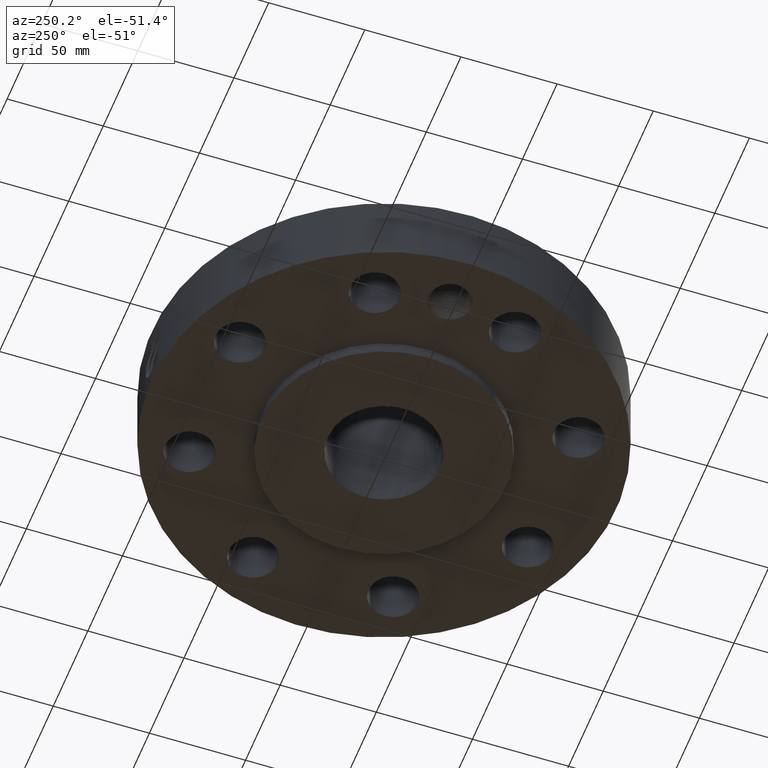
[diagram: clean part render]
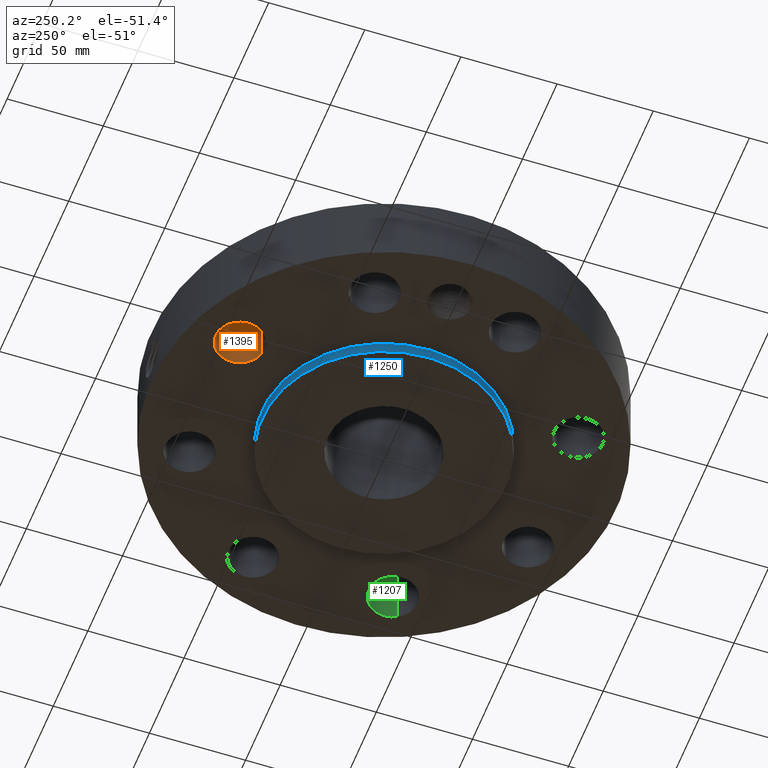
[diagram: same view with three faces highlighted in distinct colors, each labeled with its STEP entity id]
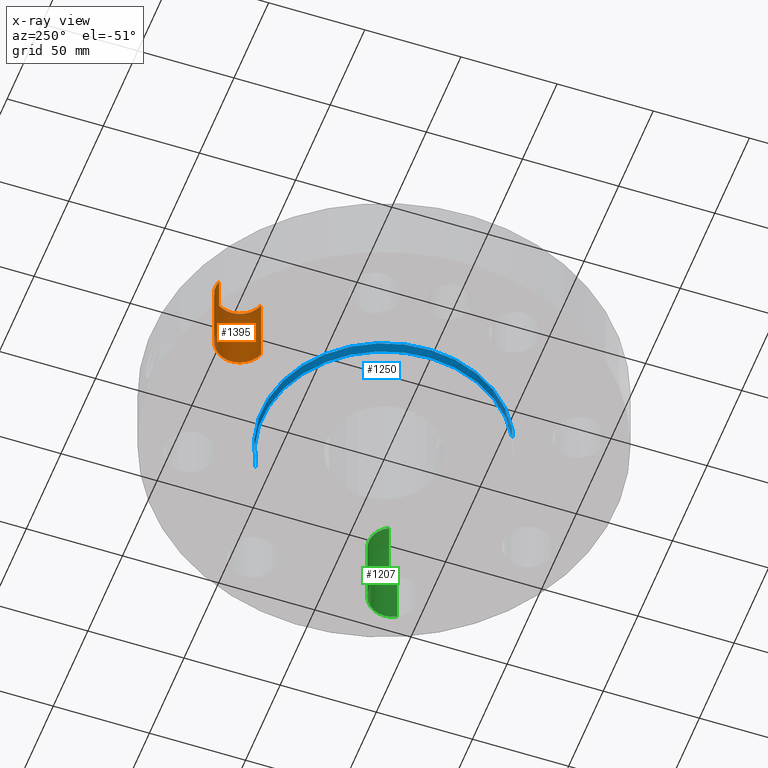
[diagram: x-ray of the same camera — body ghosted, the three highlighted faces saturated]
A machine part, auxiliary view with three faces highlighted in distinct colors.
The next image is the same camera in x-ray (body ghosted, the three faces saturated) — at least one of them is partly hidden behind the body in this view.
Their STEP definitions:

[orange] entity #1395 — the highlighted cylindrical surface (edge-blend (fillet) strip) has radius 12.7 mm, axis along (0, 0, -1).
#329=AXIS2_PLACEMENT_3D('Circle Axis2P3D',#327,#328,$) ;
#625=AXIS2_PLACEMENT_3D('Circle Axis2P3D',#623,#624,$) ;
#1370=AXIS2_PLACEMENT_3D('Cylinder Axis2P3D',#1367,#1368,#1369) ;
#322=CARTESIAN_POINT('Vertex',(-1.2942931058,2.98477343194,0.250000000001)) ;
#324=CARTESIAN_POINT('Vertex',(-1.57583263695,3.94432306193,0.250000000001)) ;
#327=CARTESIAN_POINT('Axis2P3D Location',(-1.43506287137,3.46454824693,0.250000000001)) ;
#623=CARTESIAN_POINT('Axis2P3D Location',(-1.43506287137,3.46454824693,1.75000000001)) ;
#627=CARTESIAN_POINT('Vertex',(-1.57583263695,3.94432306193,1.75000000001)) ;
#629=CARTESIAN_POINT('Vertex',(-1.2942931058,2.98477343194,1.75000000001)) ;
#1367=CARTESIAN_POINT('Axis2P3D Location',(-1.43506287137,3.46454824693,1.74606299213)) ;
#1372=CARTESIAN_POINT('Line Origine',(-1.2942931058,2.98477343194,1.)) ;
#1377=CARTESIAN_POINT('Line Origine',(-1.57583263695,3.94432306193,1.)) ;
#328=DIRECTION('Axis2P3D Direction',(0.,0.,-0.0393700787402)) ;
#624=DIRECTION('Axis2P3D Direction',(0.,0.,-0.0393700787402)) ;
#1368=DIRECTION('Axis2P3D Direction',(0.,0.,-0.0393700787402)) ;
#1369=DIRECTION('Axis2P3D XDirection',(-0.0110842335096,0.0377775444876,0.)) ;
#1373=DIRECTION('Vector Direction',(0.,0.,-0.0393700787402)) ;
#1378=DIRECTION('Vector Direction',(0.,0.,-0.0393700787402)) ;
#1374=VECTOR('Line Direction',#1373,0.0393700787402) ;
#1379=VECTOR('Line Direction',#1378,0.0393700787402) ;
#1390=ORIENTED_EDGE('',*,*,#1381,.F.) ;
#1391=ORIENTED_EDGE('',*,*,#331,.T.) ;
#1392=ORIENTED_EDGE('',*,*,#1376,.T.) ;
#1393=ORIENTED_EDGE('',*,*,#631,.F.) ;
#1395=ADVANCED_FACE('PartBody',(#1394),#1371,.F.) ;
#330=CIRCLE('generated circle',#329,0.500000000002) ;
#626=CIRCLE('generated circle',#625,0.500000000002) ;
#1371=CYLINDRICAL_SURFACE('generated cylinder',#1370,0.500000000002) ;
#331=EDGE_CURVE('',#325,#323,#330,.T.) ;
#631=EDGE_CURVE('',#628,#630,#626,.T.) ;
#1376=EDGE_CURVE('',#323,#630,#1375,.F.) ;
#1381=EDGE_CURVE('',#325,#628,#1380,.F.) ;
#1389=EDGE_LOOP('',(#1390,#1391,#1392,#1393)) ;
#1394=FACE_OUTER_BOUND('',#1389,.T.) ;
#1375=LINE('Line',#1372,#1374) ;
#1380=LINE('Line',#1377,#1379) ;
#323=VERTEX_POINT('',#322) ;
#325=VERTEX_POINT('',#324) ;
#628=VERTEX_POINT('',#627) ;
#630=VERTEX_POINT('',#629) ;

[blue] entity #1250 — the highlighted cylindrical surface (partial cylindrical patch) has radius 63.5 mm, axis along (0, 0, -1).
#239=AXIS2_PLACEMENT_3D('Circle Axis2P3D',#237,#238,$) ;
#1211=AXIS2_PLACEMENT_3D('Cylinder Axis2P3D',#1208,#1209,#1210) ;
#1241=AXIS2_PLACEMENT_3D('Circle Axis2P3D',#1239,#1240,$) ;
#232=CARTESIAN_POINT('Vertex',(1.19856384652,2.19395640473,0.250000000001)) ;
#234=CARTESIAN_POINT('Vertex',(-1.19856384652,-2.19395640473,0.250000000001)) ;
#237=CARTESIAN_POINT('Axis2P3D Location',(0.,0.,0.250000000001)) ;
#1208=CARTESIAN_POINT('Axis2P3D Location',(0.,0.,2.12500000001)) ;
#1217=CARTESIAN_POINT('Vertex',(1.19856384652,2.19395640473,2.79741234551E-016)) ;
#1219=CARTESIAN_POINT('Vertex',(-1.19856384652,-2.19395640473,2.79741234551E-016)) ;
#1222=CARTESIAN_POINT('Line Origine',(1.19856384652,2.19395640473,0.125000000001)) ;
#1227=CARTESIAN_POINT('Line Origine',(-1.19856384652,-2.19395640473,0.125000000001)) ;
#1239=CARTESIAN_POINT('Axis2P3D Location',(0.,0.,2.79741234551E-016)) ;
#238=DIRECTION('Axis2P3D Direction',(0.,0.,-0.0393700787402)) ;
#1209=DIRECTION('Axis2P3D Direction',(0.,0.,-0.0393700787402)) ;
#1210=DIRECTION('Axis2P3D XDirection',(-0.0188750212049,-0.0345504945626,0.)) ;
#1223=DIRECTION('Vector Direction',(0.,0.,-0.0393700787402)) ;
#1228=DIRECTION('Vector Direction',(0.,0.,-0.0393700787402)) ;
#1240=DIRECTION('Axis2P3D Direction',(0.,0.,-0.0393700787402)) ;
#1224=VECTOR('Line Direction',#1223,0.0393700787402) ;
#1229=VECTOR('Line Direction',#1228,0.0393700787402) ;
#1245=ORIENTED_EDGE('',*,*,#1243,.F.) ;
#1246=ORIENTED_EDGE('',*,*,#1231,.T.) ;
#1247=ORIENTED_EDGE('',*,*,#241,.T.) ;
#1248=ORIENTED_EDGE('',*,*,#1226,.F.) ;
#1250=ADVANCED_FACE('PartBody',(#1249),#1212,.T.) ;
#240=CIRCLE('generated circle',#239,2.50000000001) ;
#1242=CIRCLE('generated circle',#1241,2.50000000001) ;
#1212=CYLINDRICAL_SURFACE('generated cylinder',#1211,2.50000000001) ;
#241=EDGE_CURVE('',#235,#233,#240,.T.) ;
#1226=EDGE_CURVE('',#1218,#233,#1225,.F.) ;
#1231=EDGE_CURVE('',#1220,#235,#1230,.F.) ;
#1243=EDGE_CURVE('',#1220,#1218,#1242,.T.) ;
#1244=EDGE_LOOP('',(#1245,#1246,#1247,#1248)) ;
#1249=FACE_OUTER_BOUND('',#1244,.T.) ;
#1225=LINE('Line',#1222,#1224) ;
#1230=LINE('Line',#1227,#1229) ;
#233=VERTEX_POINT('',#232) ;
#235=VERTEX_POINT('',#234) ;
#1218=VERTEX_POINT('',#1217) ;
#1220=VERTEX_POINT('',#1219) ;

[green] entity #1207 — the highlighted cylindrical surface (edge-blend (fillet) strip) has radius 12.7 mm, axis along (0, -0, -1).
#221=AXIS2_PLACEMENT_3D('Circle Axis2P3D',#219,#220,$) ;
#517=AXIS2_PLACEMENT_3D('Circle Axis2P3D',#515,#516,$) ;
#1182=AXIS2_PLACEMENT_3D('Cylinder Axis2P3D',#1179,#1180,#1181) ;
#214=CARTESIAN_POINT('Vertex',(3.90333952788,-1.67477564068,0.250000000001)) ;
#216=CARTESIAN_POINT('Vertex',(3.02575696598,-1.19535010207,0.250000000001)) ;
#219=CARTESIAN_POINT('Axis2P3D Location',(3.46454824693,-1.43506287137,0.250000000001)) ;
#515=CARTESIAN_POINT('Axis2P3D Location',(3.46454824693,-1.43506287137,1.75000000001)) ;
#519=CARTESIAN_POINT('Vertex',(3.02575696598,-1.19535010207,1.75000000001)) ;
#521=CARTESIAN_POINT('Vertex',(3.90333952788,-1.67477564068,1.75000000001)) ;
#1179=CARTESIAN_POINT('Axis2P3D Location',(3.46454824693,-1.43506287137,1.74606299213)) ;
#1184=CARTESIAN_POINT('Line Origine',(3.90333952788,-1.67477564068,1.)) ;
#1189=CARTESIAN_POINT('Line Origine',(3.02575696598,-1.19535010207,1.)) ;
#220=DIRECTION('Axis2P3D Direction',(0.,0.,-0.0393700787402)) ;
#516=DIRECTION('Axis2P3D Direction',(0.,0.,-0.0393700787402)) ;
#1180=DIRECTION('Axis2P3D Direction',(0.,-0.,-0.0393700787402)) ;
#1181=DIRECTION('Axis2P3D XDirection',(-0.0345504945626,0.0188750212049,0.)) ;
#1185=DIRECTION('Vector Direction',(0.,0.,-0.0393700787402)) ;
#1190=DIRECTION('Vector Direction',(0.,0.,-0.0393700787402)) ;
#1186=VECTOR('Line Direction',#1185,0.0393700787402) ;
#1191=VECTOR('Line Direction',#1190,0.0393700787402) ;
#1202=ORIENTED_EDGE('',*,*,#1193,.F.) ;
#1203=ORIENTED_EDGE('',*,*,#223,.T.) ;
#1204=ORIENTED_EDGE('',*,*,#1188,.T.) ;
#1205=ORIENTED_EDGE('',*,*,#523,.F.) ;
#1207=ADVANCED_FACE('PartBody',(#1206),#1183,.F.) ;
#222=CIRCLE('generated circle',#221,0.500000000002) ;
#518=CIRCLE('generated circle',#517,0.500000000002) ;
#1183=CYLINDRICAL_SURFACE('generated cylinder',#1182,0.500000000002) ;
#223=EDGE_CURVE('',#217,#215,#222,.T.) ;
#523=EDGE_CURVE('',#520,#522,#518,.T.) ;
#1188=EDGE_CURVE('',#215,#522,#1187,.F.) ;
#1193=EDGE_CURVE('',#217,#520,#1192,.F.) ;
#1201=EDGE_LOOP('',(#1202,#1203,#1204,#1205)) ;
#1206=FACE_OUTER_BOUND('',#1201,.T.) ;
#1187=LINE('Line',#1184,#1186) ;
#1192=LINE('Line',#1189,#1191) ;
#215=VERTEX_POINT('',#214) ;
#217=VERTEX_POINT('',#216) ;
#520=VERTEX_POINT('',#519) ;
#522=VERTEX_POINT('',#521) ;